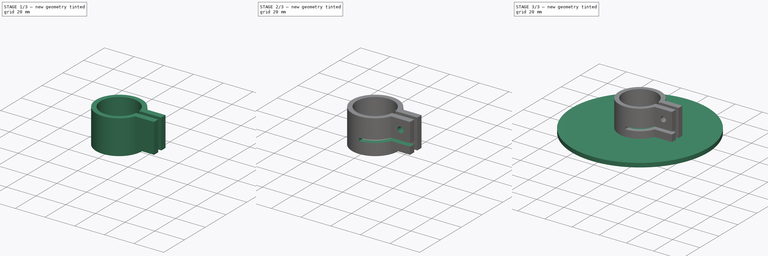
[diagram: build sequence overview — one tinted view per stage of 3, left to right]
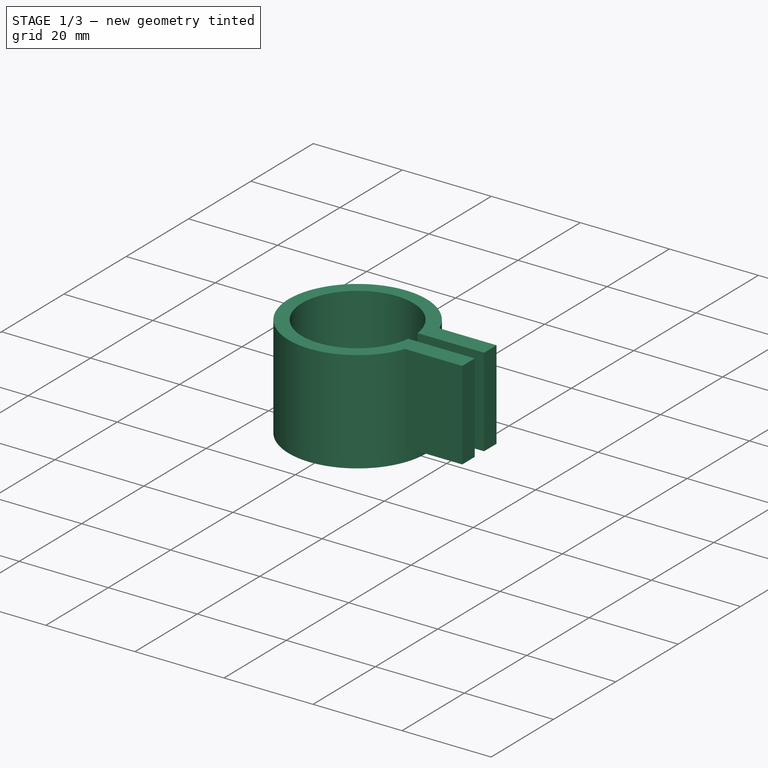
[diagram: stage 1 of 3 — iso view after this stage's code; geometry added in this stage tinted green]
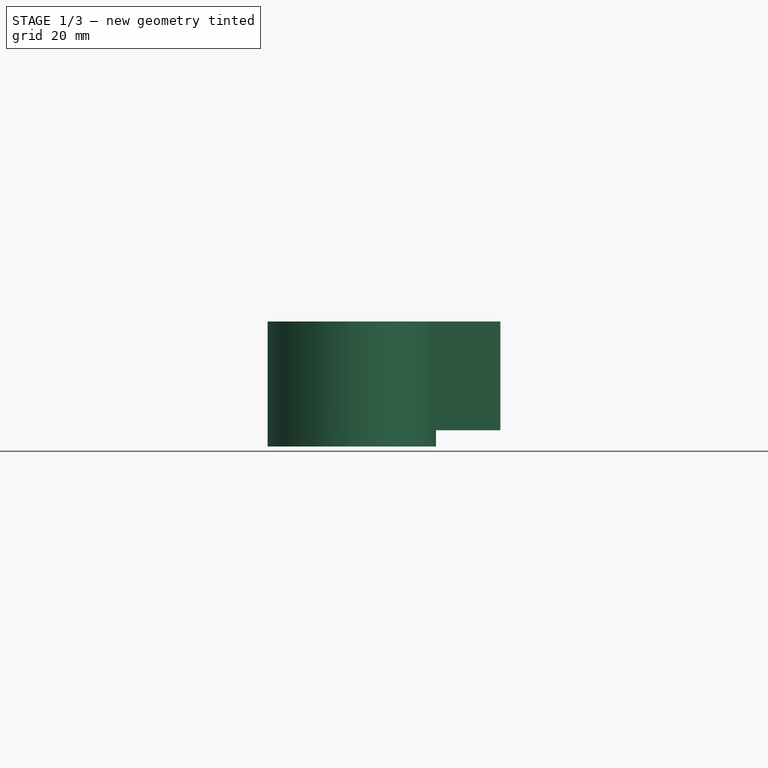
[diagram: stage 1 of 3 — front view after this stage's code; geometry added in this stage tinted green]
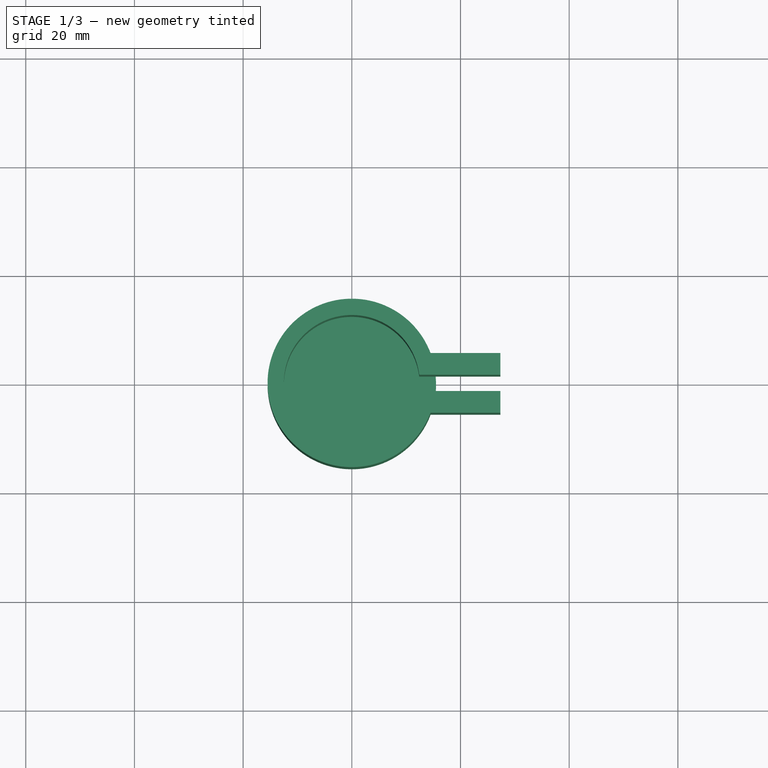
[diagram: stage 1 of 3 — top view after this stage's code; geometry added in this stage tinted green]
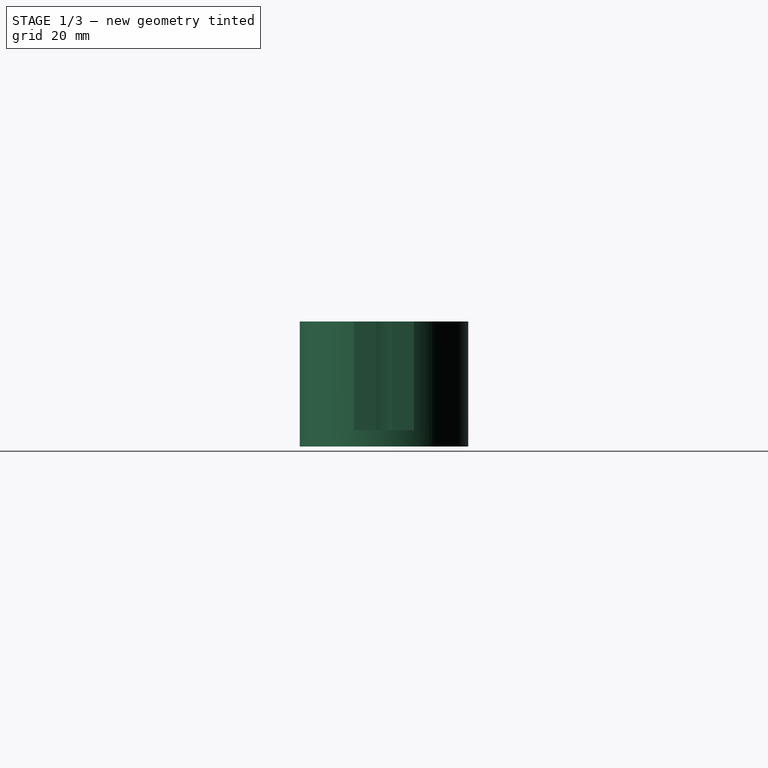
[diagram: stage 1 of 3 — right view after this stage's code; geometry added in this stage tinted green]
FCSTD DOCUMENT  (FreeCAD 0.19R24291 (Git))
Label: supportCylindre
License: All rights reserved
LicenseURL: http://en.wikipedia.org/wiki/All_rights_reserved
objects: Sketcher::SketchObject×6, PartDesign::Pad×3, PartDesign::Body×2, PartDesign::Pocket×2, PartDesign::PolarPattern×1
note: 19 computed .brp shape members not serialized (recipe doc carries the construction recipe); baked Part::Feature solids carry a one-line shape summary decoded from their .brp

FEATURE [Sketcher::SketchObject] Sketch
  FullyConstrained = true
  MapMode = 5
  Support = -> [XY_Plane001]
FEATURE [PartDesign::Body] Body  label="attache"
  Group = -> [Sketch,Pad004,Sketch006]
  Origin = -> Origin
  Tip = -> Pad004
FEATURE [Sketcher::SketchObject] Sketch007  label="serrage"
  AttachmentOffset = pos=(0,0,3) rot=(0,0,1;0rad)
  FullyConstrained = false
  MapMode = 5
  Placement = pos=(0,0,3) rot=(0,0,1;0rad)
  Support = -> [XY_Plane002]
  sketch-geometry (11):
    g0: ArcOfCircle CenterX=0 CenterY=0 CenterZ=0 NormalX=0 NormalY=0 NormalZ=1 AngleXU=0 Radius=15.5 StartAngle=0.362742 EndAngle=5.92044
    g1: ArcOfCircle CenterX=0 CenterY=0 CenterZ=0 NormalX=0 NormalY=0 NormalZ=1 AngleXU=0 Radius=12.5 StartAngle=0.12029 EndAngle=6.1629
    g2: LineSegment StartX=14.4914 StartY=5.5 StartZ=0 EndX=27.3493 EndY=5.5 EndZ=0
    g3: LineSegment StartX=27.3493 StartY=5.5 StartZ=0 EndX=27.3493 EndY=1.5 EndZ=0
    g4: LineSegment StartX=27.3493 StartY=1.5 StartZ=0 EndX=24.9505 EndY=1.5 EndZ=0
    g5: LineSegment StartX=24.9505 StartY=1.5 StartZ=0 EndX=12.4097 EndY=1.5 EndZ=0
    g6: LineSegment StartX=12.4097 StartY=-1.5 StartZ=0 EndX=27.3493 EndY=-1.5 EndZ=0
    g7: LineSegment StartX=27.3493 StartY=-1.5 StartZ=0 EndX=27.3493 EndY=-5.5 EndZ=0
    g8: LineSegment StartX=27.3493 StartY=-5.5 StartZ=0 EndX=14.4914 EndY=-5.5 EndZ=0
    g9: LineSegment StartX=20.9203 StartY=14.4772 StartZ=0 EndX=20.9203 EndY=-13.6835 EndZ=0
    g10: LineSegment StartX=27.3493 StartY=15.5727 StartZ=0 EndX=27.3493 EndY=-15.7629 EndZ=0
  constraints (27):
    c: Coincident(g0,g-1)
    c: Diameter(g0) = 31
    c: Coincident(g1,g0)
    c: Diameter(g1) = 25
    c: Horizontal(g2)
    c: Coincident(g2,g3)
    c: Vertical(g3)
    c: Coincident(g3,g4)
    c: Horizontal(g4)
    c: Coincident(g4,g5)
    c: Horizontal(g5)
    c: DistanceY(g3,g3) = 4
    c: Coincident(g0,g2)
    c: Horizontal(g6)
    c: Coincident(g6,g7)
    c: Vertical(g7)
    c: Coincident(g7,g8)
    c: Horizontal(g8)
    c: Coincident(g0,g8)
    c: Coincident(g1,g5)
    c: Coincident(g1,g6)
    c: DistanceY(g7,g7) = 4
    c: Vertical(g10)
    c: PointOnObject(g2,g10)
    c: Symmetric(g0,g2,g9)
    c: Symmetric(g3,g6,g-1)
    c: DistanceY(g6,g3) = 3
FEATURE [PartDesign::Pad] Pad
  Direction = (1,1,1)
  Length = 20
  Length2 = 100
  Profile = -> Sketch007
  Type = 0
FEATURE [Sketcher::SketchObject] Sketch008  label="support"
  ExternalGeometry = -> [Sketch007]
  FullyConstrained = true
  MapMode = 5
  Support = -> [XY_Plane002]
  sketch-geometry (1):
    g0: Circle CenterX=0 CenterY=0 CenterZ=0 NormalX=0 NormalY=0 NormalZ=1 AngleXU=0 Radius=15.5
  constraints (2):
    c: Coincident(g0,g-1)
    c: Diameter(g0) = 31
FEATURE [PartDesign::Pad] Pad005  label="support_pd"
  BaseFeature = -> Pad
  Direction = (1,1,1)
  Length = 3
  Length2 = 100
  Profile = -> Sketch008
  Type = 0
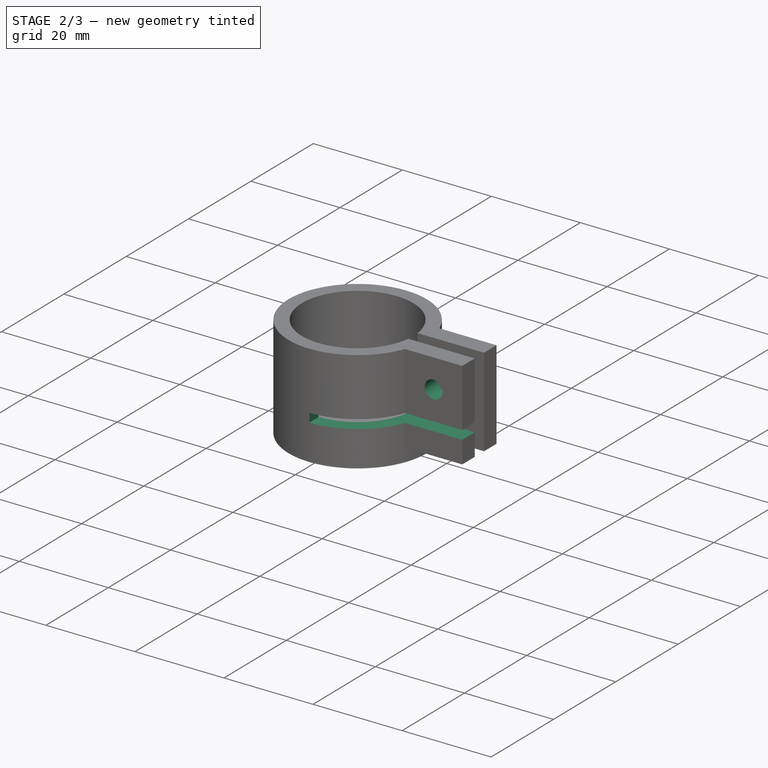
[diagram: stage 2 of 3 — iso view after this stage's code; geometry added in this stage tinted green]
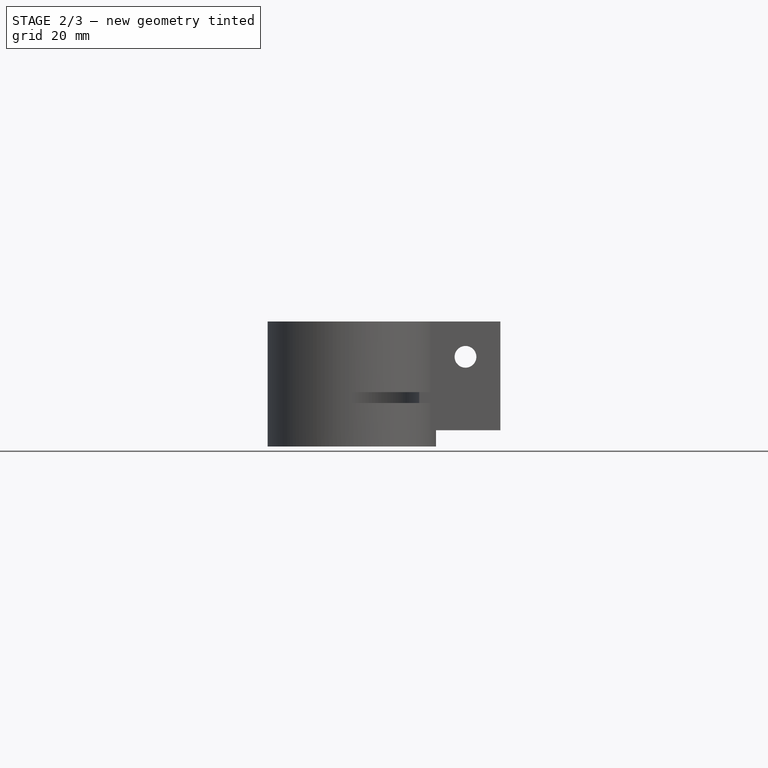
[diagram: stage 2 of 3 — front view after this stage's code; geometry added in this stage tinted green]
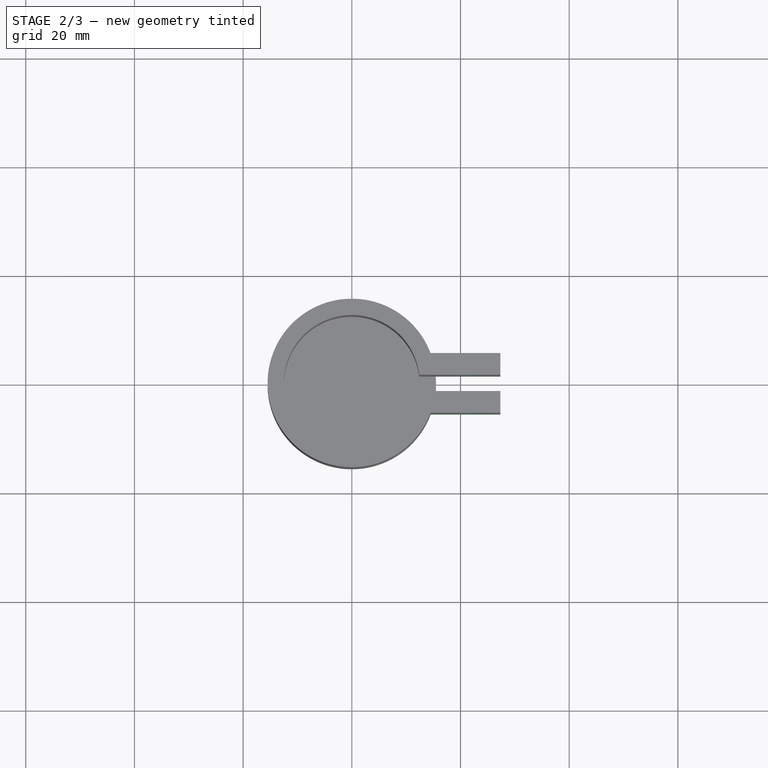
[diagram: stage 2 of 3 — top view after this stage's code; geometry added in this stage tinted green]
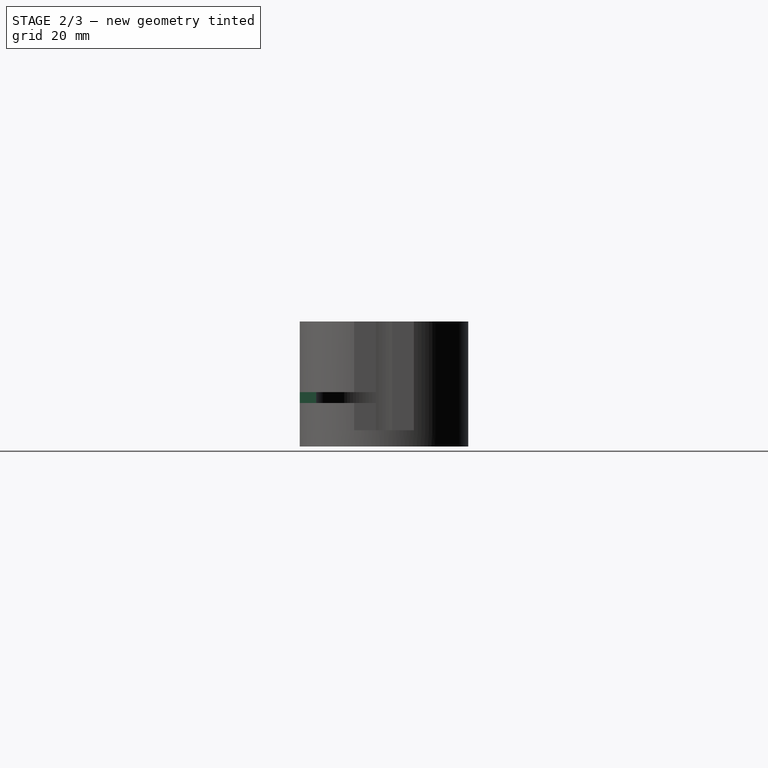
[diagram: stage 2 of 3 — right view after this stage's code; geometry added in this stage tinted green]
FEATURE [Sketcher::SketchObject] Sketch009  label="fente"
  AttachmentOffset = pos=(0,0,10) rot=(0,0,1;0rad)
  FullyConstrained = false
  MapMode = 5
  Placement = pos=(0,0,10) rot=(0,0,1;0rad)
  Support = -> [XY_Plane002]
  sketch-geometry (6):
    g0: ArcOfCircle CenterX=0 CenterY=0 CenterZ=0 NormalX=0 NormalY=0 NormalZ=1 AngleXU=0 Radius=16.9203 StartAngle=4.71239 EndAngle=5.93151
    g1: ArcOfCircle CenterX=0 CenterY=0 CenterZ=0 NormalX=0 NormalY=0 NormalZ=1 AngleXU=0 Radius=10.9693 StartAngle=4.71239 EndAngle=6.28319
    g2: LineSegment StartX=0 StartY=-10.9693 StartZ=0 EndX=-3.1e-15 EndY=-16.9203 EndZ=0
    g3: LineSegment StartX=15.8848 StartY=-5.82857 StartZ=0 EndX=36.948 EndY=-5.82857 EndZ=0
    g4: LineSegment StartX=36.948 StartY=-5.82857 StartZ=0 EndX=36.948 EndY=0 EndZ=0
    g5: LineSegment StartX=10.9693 StartY=0 StartZ=0 EndX=36.948 EndY=0 EndZ=0
  constraints (14):
    c: Coincident(g0,g-1)
    c: PointOnObject(g0,g-2)
    c: Coincident(g1,g0)
    c: PointOnObject(g1,g-1)
    c: PointOnObject(g1,g-2)
    c: Coincident(g2,g1)
    c: Coincident(g2,g0)
    c: Horizontal(g3)
    c: Coincident(g4,g3)
    c: PointOnObject(g4,g-1)
    c: Vertical(g4)
    c: Coincident(g0,g3)
    c: Coincident(g5,g1)
    c: Coincident(g5,g4)
FEATURE [PartDesign::Pocket] Pocket
  BaseFeature = -> Pad005
  Length = 2
  Length2 = 100
  Profile = -> Sketch009
  Type = 0
FEATURE [Sketcher::SketchObject] Sketch010  label="trou"
  ExternalGeometry = -> [Pocket]
  FullyConstrained = false
  MapMode = 5
  Placement = pos=(0,0,0) rot=(1,0,0;1.5708rad)
  Support = -> [XZ_Plane002]
  sketch-geometry (3):
    g0: Circle CenterX=20.9203 CenterY=16.5 CenterZ=0 NormalX=0 NormalY=0 NormalZ=1 AngleXU=0 Radius=2
    g1: LineSegment StartX=20.9203 StartY=3 StartZ=0 EndX=20.9203 EndY=23 EndZ=0
    g2: LineSegment StartX=15.1985 StartY=16.5 StartZ=0 EndX=47.3168 EndY=16.5 EndZ=0
  constraints (6):
    c: Vertical(g1)
    c: PointOnObject(g0,g1)
    c: Diameter(g0) = 4
    c: Symmetric(g-3,g-4,g1)
    c: Symmetric(g-4,g-4,g2)
    c: PointOnObject(g0,g2)
FEATURE [PartDesign::Pocket] Pocket001
  BaseFeature = -> Pocket
  Length = 10
  Length2 = 100
  Profile = -> Sketch010
  Type = 4
FEATURE [PartDesign::Body] Body001  label="Connecteur"
  Group = -> [Sketch007,Pad,Sketch008,Pad005,Sketch009,Pocket,Sketch010,Pocket001]
  Origin = -> Origin001
  Tip = -> Pocket001
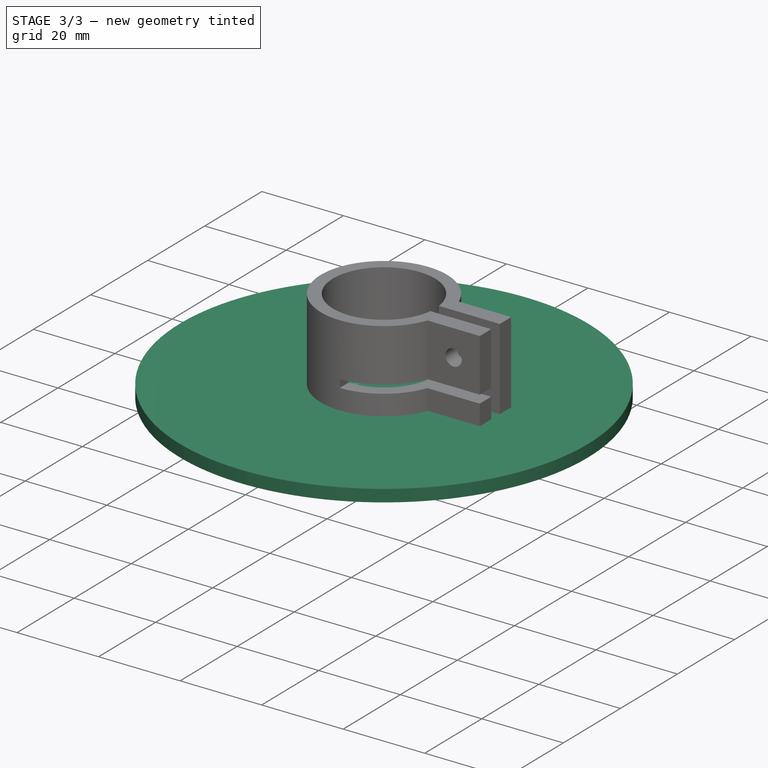
[diagram: stage 3 of 3 — iso view after this stage's code; geometry added in this stage tinted green]
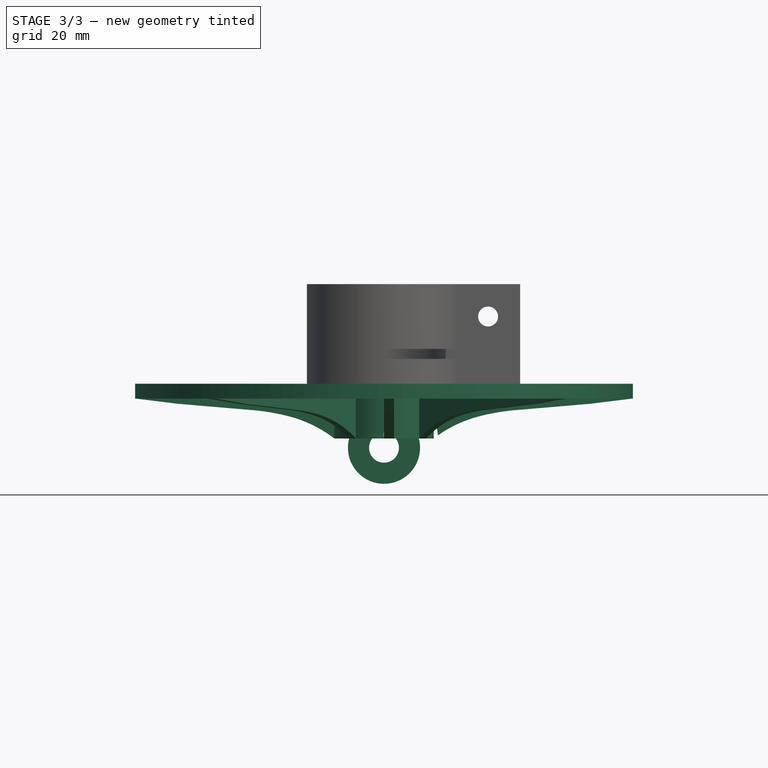
[diagram: stage 3 of 3 — front view after this stage's code; geometry added in this stage tinted green]
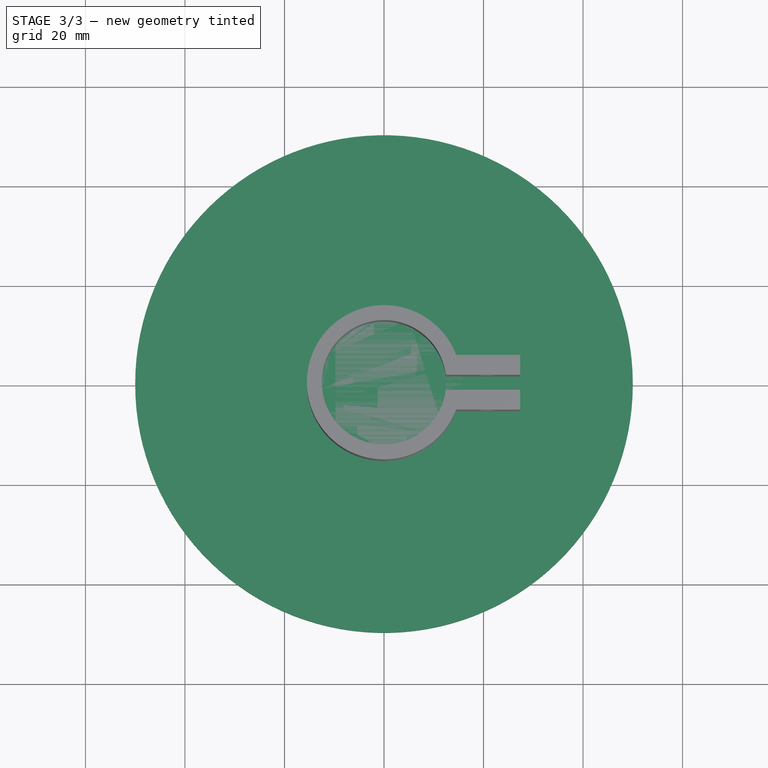
[diagram: stage 3 of 3 — top view after this stage's code; geometry added in this stage tinted green]
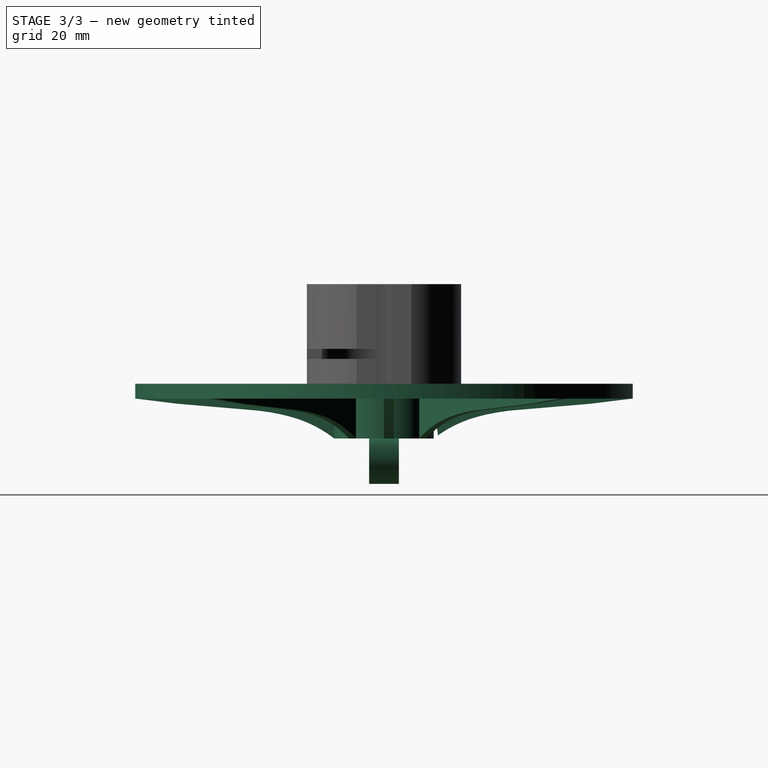
[diagram: stage 3 of 3 — right view after this stage's code; geometry added in this stage tinted green]
FEATURE [PartDesign::PolarPattern] PolarPattern
  Angle = 360
  Axis = -> Z_Axis
  Occurrences = 8
FEATURE [Sketcher::SketchObject] Sketch006  label="bras"
  AttachmentOffset = pos=(0,0,-3) rot=(0,0,1;0rad)
  FullyConstrained = false
  MapMode = 5
  Placement = pos=(0,3,-7e-16) rot=(1,0,0;1.5708rad)
  Support = -> [XZ_Plane001]
  sketch-geometry (5):
    g0: LineSegment StartX=-7 StartY=0 StartZ=0 EndX=7 EndY=0 EndZ=0
    g1: LineSegment StartX=7 StartY=0 StartZ=0 EndX=7 EndY=-8 EndZ=0
    g2: LineSegment StartX=-7 StartY=-8 StartZ=0 EndX=-7 EndY=0 EndZ=0
    g3: Circle CenterX=1e-16 CenterY=-9.86986 CenterZ=0 NormalX=0 NormalY=0 NormalZ=1 AngleXU=0 Radius=3
    g4: ArcOfCircle CenterX=1e-16 CenterY=-9.86986 CenterZ=0 NormalX=0 NormalY=0 NormalZ=1 AngleXU=0 Radius=7.24544 StartAngle=2.88056 EndAngle=6.54421
  constraints (13):
    c: Coincident(g0,g1)
    c: Coincident(g2,g0)
    c: Vertical(g1)
    c: Vertical(g2)
    c: Equal(g1,g2)
    c: DistanceY(g1,g1) = 8
    c: Symmetric(g0,g0,g-2)
    c: DistanceX(g0,g0) = 14
    c: Diameter(g3) = 6
    c: Coincident(g4,g3)
    c: Coincident(g4,g2)
    c: Coincident(g4,g1)
    c: PointOnObject(g0,g-1)
FEATURE [PartDesign::Pad] Pad004
  Direction = (1,1,1)
  Length = 6
  Length2 = 100
  Placement = pos=(0,0,0) rot=(1,0,0;1.5708rad)
  Profile = -> Sketch006
  Type = 0
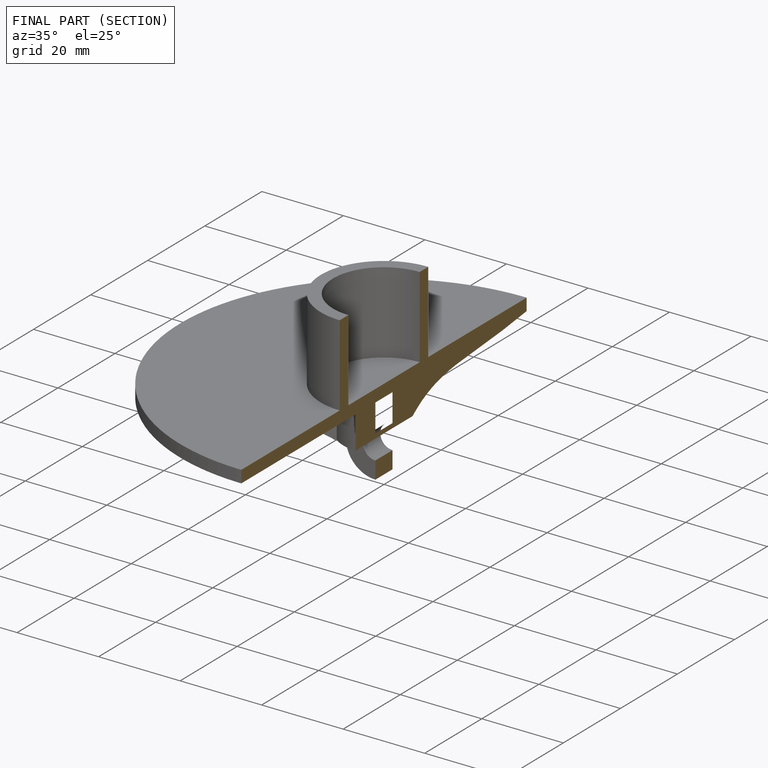
[diagram: finished part — half-section view (interior)]
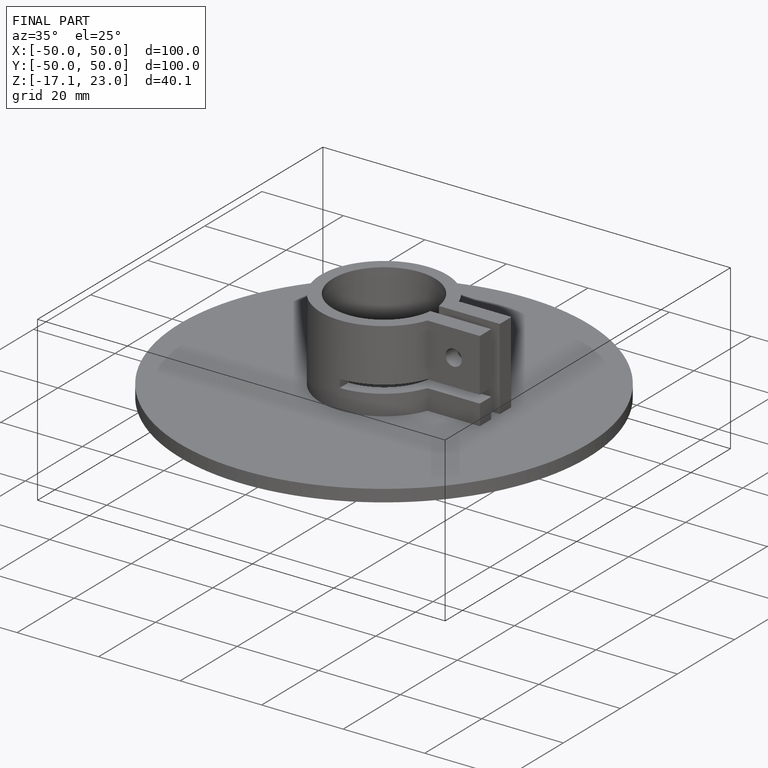
[diagram: finished part — iso view with bounding-box wireframe]
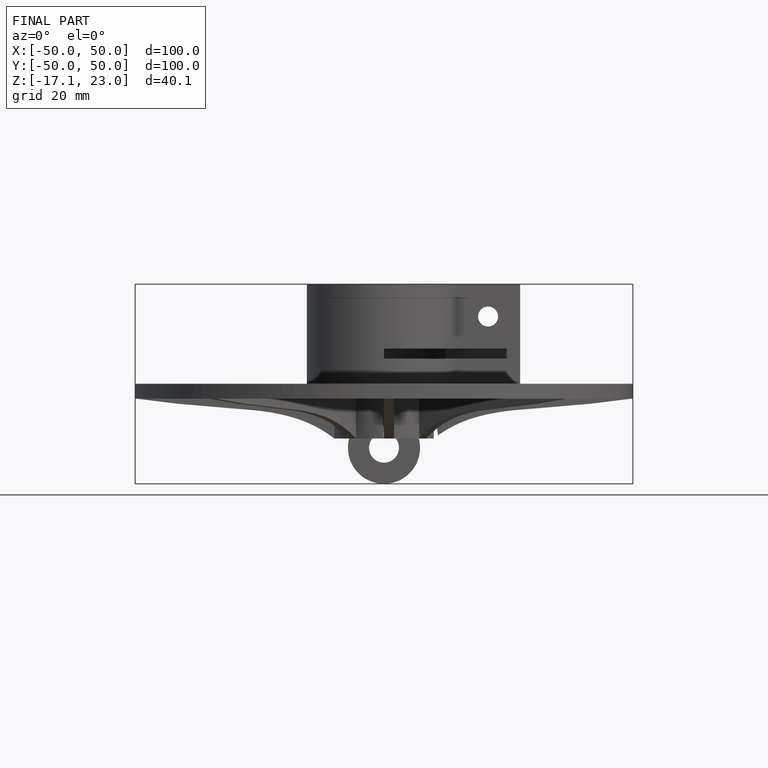
[diagram: finished part — front view with bounding-box wireframe]
